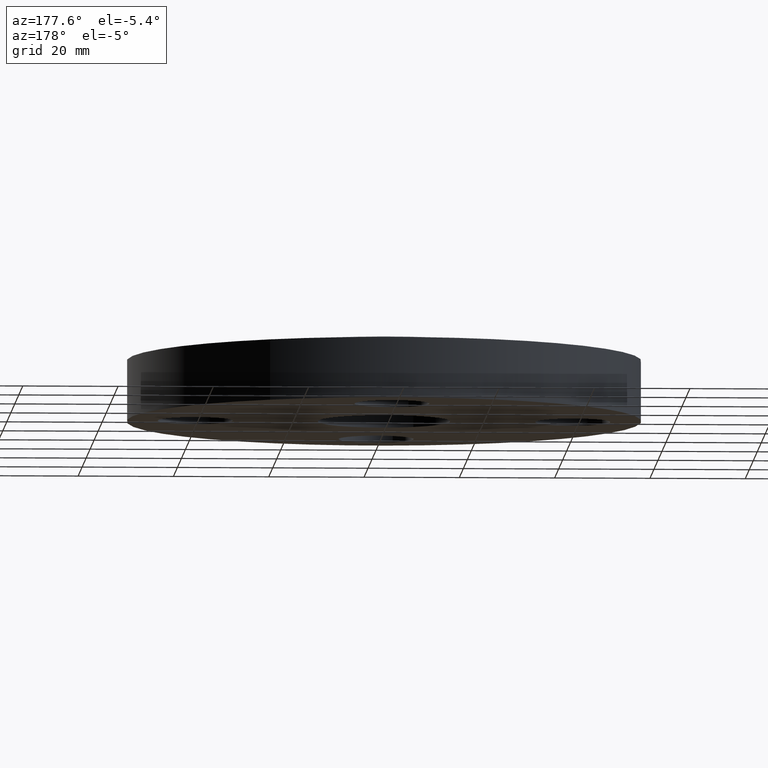
[diagram: clean part render]
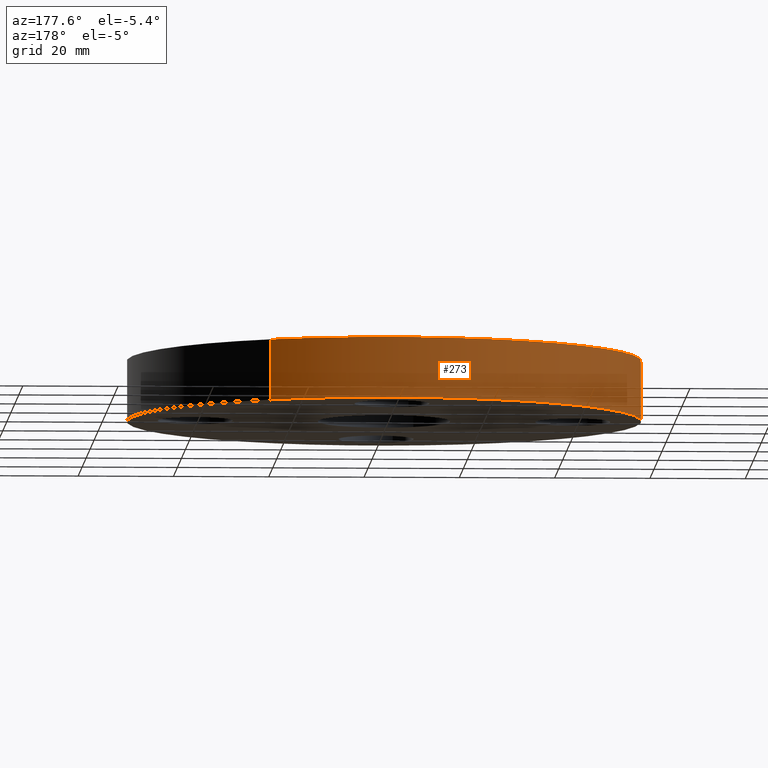
[diagram: same view with one face highlighted and labeled with its STEP entity id]
A machine part, auxiliary view. The second image highlights one B-rep face of the part: STEP entity #273.
In plain terms, the highlighted cylindrical surface (partial cylindrical patch) has radius 53.975 mm, axis along (0, 0, -1).
Its self-contained STEP definition (entity closure, byte-faithful):
#150=AXIS2_PLACEMENT_3D('Circle Axis2P3D',#148,#149,$) ;
#246=AXIS2_PLACEMENT_3D('Cylinder Axis2P3D',#243,#244,#245) ;
#257=AXIS2_PLACEMENT_3D('Circle Axis2P3D',#255,#256,$) ;
#148=CARTESIAN_POINT('Axis2P3D Location',(0.,0.,0.)) ;
#152=CARTESIAN_POINT('Vertex',(-1.01877926954,-1.86486294402,2.44773580232E-016)) ;
#154=CARTESIAN_POINT('Vertex',(1.01877926954,1.86486294402,2.44773580232E-016)) ;
#243=CARTESIAN_POINT('Axis2P3D Location',(0.,0.,0.310000000001)) ;
#248=CARTESIAN_POINT('Line Origine',(-1.01877926954,-1.86486294402,0.250000000001)) ;
#252=CARTESIAN_POINT('Vertex',(-1.01877926954,-1.86486294402,0.500000000002)) ;
#255=CARTESIAN_POINT('Axis2P3D Location',(0.,0.,0.500000000002)) ;
#259=CARTESIAN_POINT('Vertex',(1.01877926954,1.86486294402,0.500000000002)) ;
#262=CARTESIAN_POINT('Line Origine',(1.01877926954,1.86486294402,0.250000000001)) ;
#149=DIRECTION('Axis2P3D Direction',(0.,0.,-0.0393700787402)) ;
#244=DIRECTION('Axis2P3D Direction',(0.,0.,-0.0393700787402)) ;
#245=DIRECTION('Axis2P3D XDirection',(0.0188750212049,0.0345504945626,0.)) ;
#249=DIRECTION('Vector Direction',(0.,0.,-0.0393700787402)) ;
#256=DIRECTION('Axis2P3D Direction',(0.,0.,-0.0393700787402)) ;
#263=DIRECTION('Vector Direction',(0.,0.,-0.0393700787402)) ;
#250=VECTOR('Line Direction',#249,0.0393700787402) ;
#264=VECTOR('Line Direction',#263,0.0393700787402) ;
#268=ORIENTED_EDGE('',*,*,#156,.F.) ;
#269=ORIENTED_EDGE('',*,*,#254,.T.) ;
#270=ORIENTED_EDGE('',*,*,#261,.T.) ;
#271=ORIENTED_EDGE('',*,*,#266,.F.) ;
#273=ADVANCED_FACE('PartBody',(#272),#247,.T.) ;
#151=CIRCLE('generated circle',#150,2.12500000001) ;
#258=CIRCLE('generated circle',#257,2.12500000001) ;
#247=CYLINDRICAL_SURFACE('generated cylinder',#246,2.12500000001) ;
#156=EDGE_CURVE('',#153,#155,#151,.T.) ;
#254=EDGE_CURVE('',#153,#253,#251,.F.) ;
#261=EDGE_CURVE('',#253,#260,#258,.T.) ;
#266=EDGE_CURVE('',#155,#260,#265,.F.) ;
#267=EDGE_LOOP('',(#268,#269,#270,#271)) ;
#272=FACE_OUTER_BOUND('',#267,.T.) ;
#251=LINE('Line',#248,#250) ;
#265=LINE('Line',#262,#264) ;
#153=VERTEX_POINT('',#152) ;
#155=VERTEX_POINT('',#154) ;
#253=VERTEX_POINT('',#252) ;
#260=VERTEX_POINT('',#259) ;